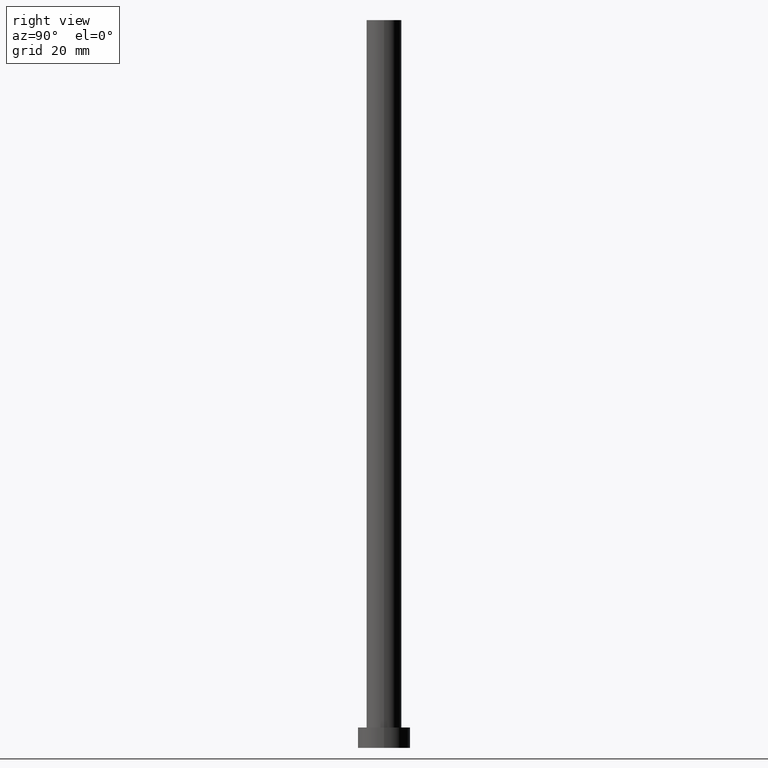
[diagram: clean part render]
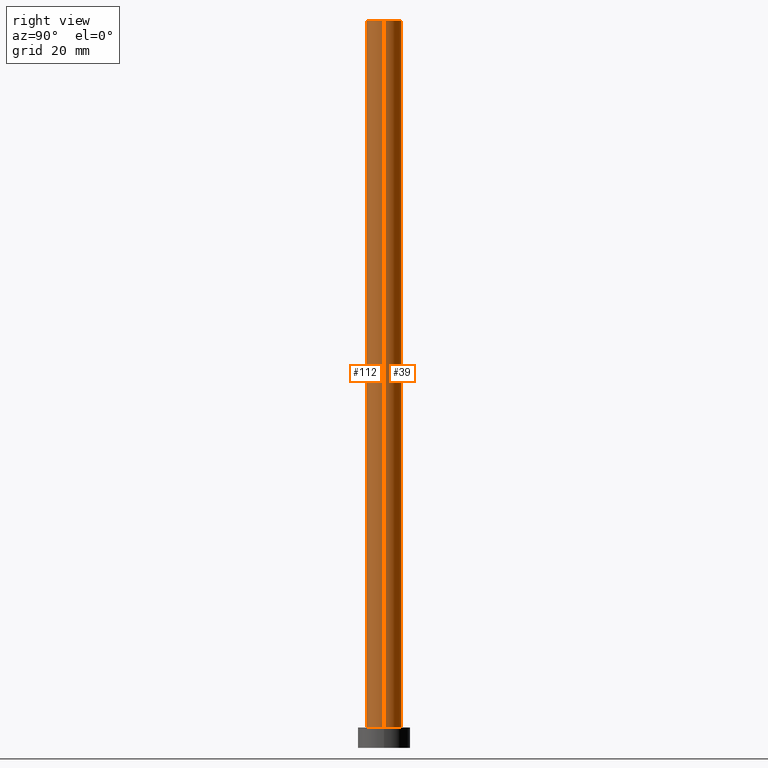
[diagram: same view with one multi-face feature highlighted, each face labeled with its STEP entity id]
A machine part, right view. The highlighted faces form ONE feature: a constant-radius fillet chain: 2 tangent blend faces with common blend radius 6 mm. The faces share edges in the B-rep.
Their STEP definitions:
[1] entity #39 (Cylinder):
#5 = AXIS2_PLACEMENT_3D ( 'NONE', #195, #57, #120 ) ;
#7 = EDGE_CURVE ( 'NONE', #53, #50, #18, .T. ) ;
#10 = EDGE_LOOP ( 'NONE', ( #209, #207, #124, #110 ) ) ;
#12 = CARTESIAN_POINT ( 'NONE',  ( 0.000000000000000000, 0.000000000000000000, 250.0000000000000000 ) ) ;
#18 = LINE ( 'NONE', #168, #211 ) ;
#36 = CARTESIAN_POINT ( 'NONE',  ( -6.000000000000000888, 0.000000000000000000, 250.0000000000000000 ) ) ;
#38 = CARTESIAN_POINT ( 'NONE',  ( 6.000000000000000888, 7.347880794884120722E-16, 250.0000000000000000 ) ) ;
#39 = ADVANCED_FACE ( 'NONE', ( #169 ), #88, .T. ) ;
#42 = CIRCLE ( 'NONE', #74, 6.000000000000000888 ) ;
#43 = LINE ( 'NONE', #38, #73 ) ;
#48 = EDGE_CURVE ( 'NONE', #107, #53, #42, .T. ) ;
#50 = VERTEX_POINT ( 'NONE', #170 ) ;
#52 = CARTESIAN_POINT ( 'NONE',  ( 0.000000000000000000, 0.000000000000000000, 250.0000000000000000 ) ) ;
#53 = VERTEX_POINT ( 'NONE', #36 ) ;
#57 = DIRECTION ( 'NONE',  ( 0.000000000000000000, 0.000000000000000000, 1.000000000000000000 ) ) ;
#67 = DIRECTION ( 'NONE',  ( -0.000000000000000000, -0.000000000000000000, -1.000000000000000000 ) ) ;
#68 = DIRECTION ( 'NONE',  ( -0.000000000000000000, -0.000000000000000000, -1.000000000000000000 ) ) ;
#73 = VECTOR ( 'NONE', #136, 1000.000000000000000 ) ;
#74 = AXIS2_PLACEMENT_3D ( 'NONE', #12, #113, #227 ) ;
#88 = CYLINDRICAL_SURFACE ( 'NONE', #149, 6.000000000000000888 ) ;
#107 = VERTEX_POINT ( 'NONE', #157 ) ;
#110 = ORIENTED_EDGE ( 'NONE', *, *, #7, .F. ) ;
#113 = DIRECTION ( 'NONE',  ( 0.000000000000000000, 0.000000000000000000, 1.000000000000000000 ) ) ;
#118 = CARTESIAN_POINT ( 'NONE',  ( 6.000000000000000888, 7.347880794884120722E-16, 7.000000000000000000 ) ) ;
#120 = DIRECTION ( 'NONE',  ( 1.000000000000000000, 0.000000000000000000, 0.000000000000000000 ) ) ;
#124 = ORIENTED_EDGE ( 'NONE', *, *, #143, .T. ) ;
#136 = DIRECTION ( 'NONE',  ( -0.000000000000000000, -0.000000000000000000, -1.000000000000000000 ) ) ;
#143 = EDGE_CURVE ( 'NONE', #148, #50, #159, .T. ) ;
#144 = EDGE_CURVE ( 'NONE', #107, #148, #43, .T. ) ;
#148 = VERTEX_POINT ( 'NONE', #118 ) ;
#149 = AXIS2_PLACEMENT_3D ( 'NONE', #52, #67, #151 ) ;
#151 = DIRECTION ( 'NONE',  ( -1.000000000000000000, 0.000000000000000000, 0.000000000000000000 ) ) ;
#157 = CARTESIAN_POINT ( 'NONE',  ( 6.000000000000000888, 7.347880794884120722E-16, 250.0000000000000000 ) ) ;
#159 = CIRCLE ( 'NONE', #5, 6.000000000000000888 ) ;
#168 = CARTESIAN_POINT ( 'NONE',  ( -6.000000000000000888, 0.000000000000000000, 250.0000000000000000 ) ) ;
#169 = FACE_OUTER_BOUND ( 'NONE', #10, .T. ) ;
#170 = CARTESIAN_POINT ( 'NONE',  ( -6.000000000000000888, 0.000000000000000000, 7.000000000000000000 ) ) ;
#195 = CARTESIAN_POINT ( 'NONE',  ( 0.000000000000000000, 0.000000000000000000, 7.000000000000000000 ) ) ;
#207 = ORIENTED_EDGE ( 'NONE', *, *, #144, .T. ) ;
#209 = ORIENTED_EDGE ( 'NONE', *, *, #48, .F. ) ;
#211 = VECTOR ( 'NONE', #68, 1000.000000000000000 ) ;
#227 = DIRECTION ( 'NONE',  ( 1.000000000000000000, 0.000000000000000000, 0.000000000000000000 ) ) ;
[2] entity #112 (Cylinder):
#6 = AXIS2_PLACEMENT_3D ( 'NONE', #229, #185, #248 ) ;
#7 = EDGE_CURVE ( 'NONE', #53, #50, #18, .T. ) ;
#8 = EDGE_CURVE ( 'NONE', #50, #148, #132, .T. ) ;
#18 = LINE ( 'NONE', #168, #211 ) ;
#21 = DIRECTION ( 'NONE',  ( 0.000000000000000000, 0.000000000000000000, 1.000000000000000000 ) ) ;
#27 = AXIS2_PLACEMENT_3D ( 'NONE', #158, #21, #238 ) ;
#28 = AXIS2_PLACEMENT_3D ( 'NONE', #192, #139, #196 ) ;
#36 = CARTESIAN_POINT ( 'NONE',  ( -6.000000000000000888, 0.000000000000000000, 250.0000000000000000 ) ) ;
#37 = CIRCLE ( 'NONE', #27, 6.000000000000000888 ) ;
#38 = CARTESIAN_POINT ( 'NONE',  ( 6.000000000000000888, 7.347880794884120722E-16, 250.0000000000000000 ) ) ;
#41 = FACE_OUTER_BOUND ( 'NONE', #104, .T. ) ;
#43 = LINE ( 'NONE', #38, #73 ) ;
#50 = VERTEX_POINT ( 'NONE', #170 ) ;
#53 = VERTEX_POINT ( 'NONE', #36 ) ;
#68 = DIRECTION ( 'NONE',  ( -0.000000000000000000, -0.000000000000000000, -1.000000000000000000 ) ) ;
#73 = VECTOR ( 'NONE', #136, 1000.000000000000000 ) ;
#100 = CYLINDRICAL_SURFACE ( 'NONE', #28, 6.000000000000000888 ) ;
#103 = ORIENTED_EDGE ( 'NONE', *, *, #150, .F. ) ;
#104 = EDGE_LOOP ( 'NONE', ( #246, #103, #231, #226 ) ) ;
#107 = VERTEX_POINT ( 'NONE', #157 ) ;
#112 = ADVANCED_FACE ( 'NONE', ( #41 ), #100, .T. ) ;
#118 = CARTESIAN_POINT ( 'NONE',  ( 6.000000000000000888, 7.347880794884120722E-16, 7.000000000000000000 ) ) ;
#132 = CIRCLE ( 'NONE', #6, 6.000000000000000888 ) ;
#136 = DIRECTION ( 'NONE',  ( -0.000000000000000000, -0.000000000000000000, -1.000000000000000000 ) ) ;
#139 = DIRECTION ( 'NONE',  ( -0.000000000000000000, -0.000000000000000000, -1.000000000000000000 ) ) ;
#144 = EDGE_CURVE ( 'NONE', #107, #148, #43, .T. ) ;
#148 = VERTEX_POINT ( 'NONE', #118 ) ;
#150 = EDGE_CURVE ( 'NONE', #53, #107, #37, .T. ) ;
#157 = CARTESIAN_POINT ( 'NONE',  ( 6.000000000000000888, 7.347880794884120722E-16, 250.0000000000000000 ) ) ;
#158 = CARTESIAN_POINT ( 'NONE',  ( 0.000000000000000000, 0.000000000000000000, 250.0000000000000000 ) ) ;
#168 = CARTESIAN_POINT ( 'NONE',  ( -6.000000000000000888, 0.000000000000000000, 250.0000000000000000 ) ) ;
#170 = CARTESIAN_POINT ( 'NONE',  ( -6.000000000000000888, 0.000000000000000000, 7.000000000000000000 ) ) ;
#185 = DIRECTION ( 'NONE',  ( 0.000000000000000000, 0.000000000000000000, 1.000000000000000000 ) ) ;
#192 = CARTESIAN_POINT ( 'NONE',  ( 0.000000000000000000, 0.000000000000000000, 250.0000000000000000 ) ) ;
#196 = DIRECTION ( 'NONE',  ( -1.000000000000000000, 0.000000000000000000, 0.000000000000000000 ) ) ;
#211 = VECTOR ( 'NONE', #68, 1000.000000000000000 ) ;
#226 = ORIENTED_EDGE ( 'NONE', *, *, #8, .T. ) ;
#229 = CARTESIAN_POINT ( 'NONE',  ( 0.000000000000000000, 0.000000000000000000, 7.000000000000000000 ) ) ;
#231 = ORIENTED_EDGE ( 'NONE', *, *, #7, .T. ) ;
#238 = DIRECTION ( 'NONE',  ( 1.000000000000000000, 0.000000000000000000, 0.000000000000000000 ) ) ;
#246 = ORIENTED_EDGE ( 'NONE', *, *, #144, .F. ) ;
#248 = DIRECTION ( 'NONE',  ( 1.000000000000000000, 0.000000000000000000, 0.000000000000000000 ) ) ;